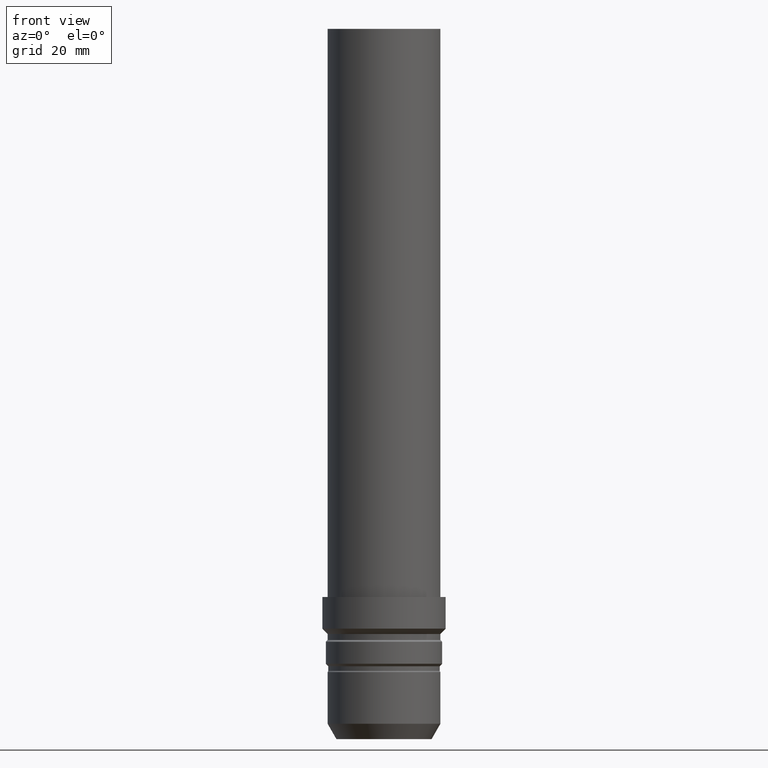
[diagram: clean part render]
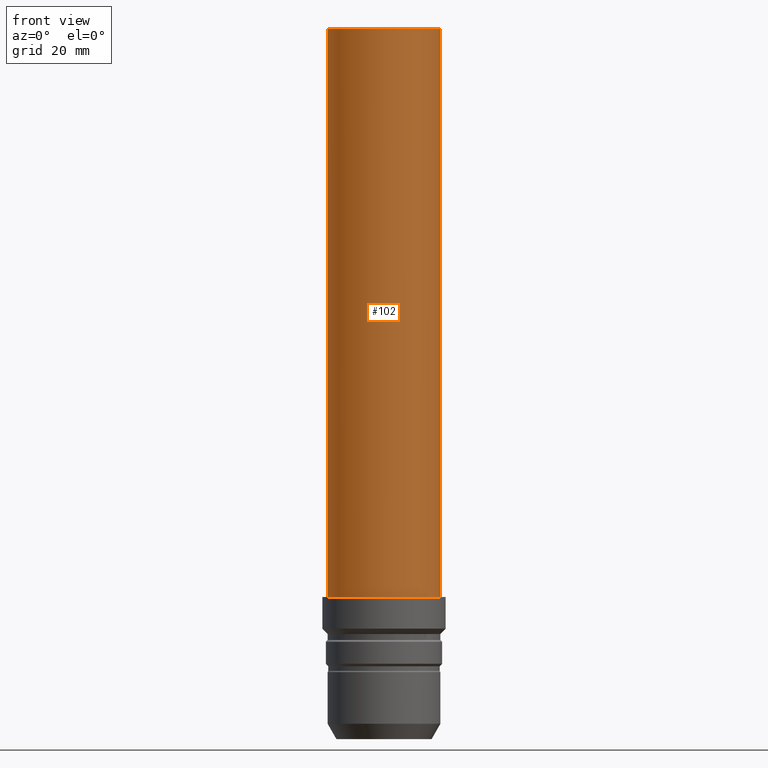
[diagram: same view with one face highlighted and labeled with its STEP entity id]
A machine part, front view. The second image highlights one B-rep face of the part: STEP entity #102.
In plain terms, the highlighted cylindrical surface (bore or boss wall) has radius 16 mm, axis along (0, -0, -1).
Its self-contained STEP definition (entity closure, byte-faithful):
#68=EDGE_CURVE('Unnamed[1]',#165,#165,#166,.T.);
#72=EDGE_CURVE('Unnamed[1]',#171,#171,#172,.T.);
#102=ADVANCED_FACE('Unnamed[1]',(#218,#219),#220,.T.);
#165=VERTEX_POINT('',#288);
#166=CIRCLE('',#289,16.0000000000002);
#171=VERTEX_POINT('',#296);
#172=CIRCLE('',#297,16.0);
#218=FACE_BOUND('',#354,.T.);
#219=FACE_BOUND('',#355,.T.);
#220=CYLINDRICAL_SURFACE('',#356,16.0000000000001);
#288=CARTESIAN_POINT('',(-2.4492935982947E-015,16.0000000000002,39.9999999999999));
#289=AXIS2_PLACEMENT_3D('',#422,#423,#424);
#296=CARTESIAN_POINT('',(-1.22464679914735E-014,16.0000000000002,200.0));
#297=AXIS2_PLACEMENT_3D('',#428,#429,#430);
#354=EDGE_LOOP('',(#482));
#355=EDGE_LOOP('',(#483));
#356=AXIS2_PLACEMENT_3D('',#484,#485,#486);
#422=CARTESIAN_POINT('',(-2.4492935982947E-015,4.29429969618264E-014,39.9999999999999));
#423=DIRECTION('',(6.12323399573677E-017,-1.07357492404574E-015,-1.0));
#424=DIRECTION('',(6.09103519881023E-032,1.0,-1.07357492404574E-015));
#428=CARTESIAN_POINT('',(-1.22464679914735E-014,2.14714984809132E-013,200.0));
#429=DIRECTION('',(6.12323399573677E-017,-1.07357492404576E-015,-1.0));
#430=DIRECTION('',(6.09103519881032E-032,1.0,-1.07357492404576E-015));
#482=ORIENTED_EDGE('',*,*,#68,.F.);
#483=ORIENTED_EDGE('',*,*,#72,.T.);
#484=CARTESIAN_POINT('',(-7.3478807948841E-015,1.28828990885479E-013,120.0));
#485=DIRECTION('',(6.12323399573676E-017,-1.07357492404575E-015,-1.0));
#486=DIRECTION('',(6.09103519881252E-032,1.0,-1.07357492404575E-015));